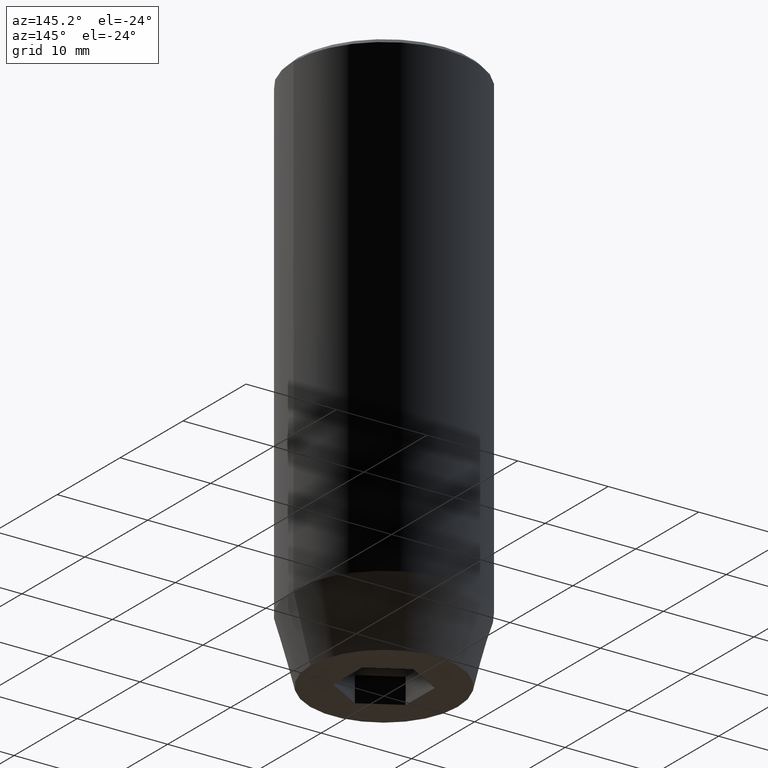
[diagram: clean part render]
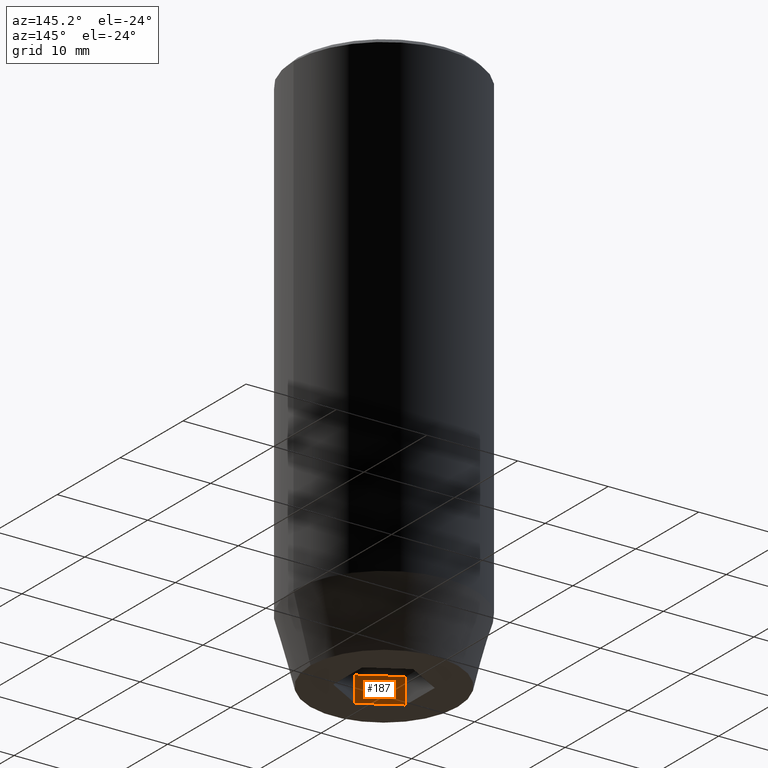
[diagram: same view with one face highlighted and labeled with its STEP entity id]
A machine part, auxiliary view. The second image highlights one B-rep face of the part: STEP entity #187.
In plain terms, the highlighted planar face has unit normal (-0.5, -0.866, 0).
Its self-contained STEP definition (entity closure, byte-faithful):
#1 = CARTESIAN_POINT ( 'NONE',  ( -2.000000000000000888, -3.464101615137754386, -57.20000000000000284 ) ) ;
#2 = CARTESIAN_POINT ( 'NONE',  ( -2.000000000000000888, -3.464101615137754386, -60.00000000000000000 ) ) ;
#14 = ORIENTED_EDGE ( 'NONE', *, *, #145, .T. ) ;
#23 = DIRECTION ( 'NONE',  ( 0.8660254037844384856, -0.5000000000000002220, 0.000000000000000000 ) ) ;
#32 = EDGE_CURVE ( 'NONE', #308, #71, #312, .T. ) ;
#56 = CARTESIAN_POINT ( 'NONE',  ( 4.336808689942017736E-16, -4.618802153517006737, -57.20000000000000284 ) ) ;
#71 = VERTEX_POINT ( 'NONE', #74 ) ;
#74 = CARTESIAN_POINT ( 'NONE',  ( -4.000000000000000000, -2.309401076758503368, -57.20000000000000284 ) ) ;
#78 = VERTEX_POINT ( 'NONE', #416 ) ;
#80 = VECTOR ( 'NONE', #234, 1000.000000000000000 ) ;
#90 = EDGE_LOOP ( 'NONE', ( #14, #126, #549, #178 ) ) ;
#96 = VECTOR ( 'NONE', #106, 1000.000000000000114 ) ;
#106 = DIRECTION ( 'NONE',  ( -0.8660254037844384856, 0.5000000000000002220, 0.000000000000000000 ) ) ;
#120 = CARTESIAN_POINT ( 'NONE',  ( -2.000000000000000888, -3.464101615137754386, -57.20000000000000284 ) ) ;
#126 = ORIENTED_EDGE ( 'NONE', *, *, #264, .F. ) ;
#141 = VECTOR ( 'NONE', #188, 1000.000000000000114 ) ;
#144 = AXIS2_PLACEMENT_3D ( 'NONE', #120, #419, #23 ) ;
#145 = EDGE_CURVE ( 'NONE', #78, #217, #540, .T. ) ;
#178 = ORIENTED_EDGE ( 'NONE', *, *, #332, .T. ) ;
#180 = DIRECTION ( 'NONE',  ( -0.000000000000000000, -0.000000000000000000, -1.000000000000000000 ) ) ;
#187 = ADVANCED_FACE ( 'NONE', ( #507 ), #512, .F. ) ;
#188 = DIRECTION ( 'NONE',  ( -0.8660254037844384856, 0.5000000000000002220, 0.000000000000000000 ) ) ;
#217 = VERTEX_POINT ( 'NONE', #508 ) ;
#234 = DIRECTION ( 'NONE',  ( -0.000000000000000000, -0.000000000000000000, -1.000000000000000000 ) ) ;
#264 = EDGE_CURVE ( 'NONE', #71, #217, #583, .T. ) ;
#272 = LINE ( 'NONE', #56, #80 ) ;
#292 = VECTOR ( 'NONE', #180, 1000.000000000000000 ) ;
#308 = VERTEX_POINT ( 'NONE', #415 ) ;
#312 = LINE ( 'NONE', #1, #96 ) ;
#332 = EDGE_CURVE ( 'NONE', #308, #78, #272, .T. ) ;
#394 = CARTESIAN_POINT ( 'NONE',  ( -4.000000000000000000, -2.309401076758503368, -57.20000000000000284 ) ) ;
#415 = CARTESIAN_POINT ( 'NONE',  ( 4.336808689942017736E-16, -4.618802153517006737, -57.20000000000000284 ) ) ;
#416 = CARTESIAN_POINT ( 'NONE',  ( 4.336808689942017736E-16, -4.618802153517006737, -60.00000000000000000 ) ) ;
#419 = DIRECTION ( 'NONE',  ( -0.5000000000000003331, -0.8660254037844385966, 0.000000000000000000 ) ) ;
#507 = FACE_OUTER_BOUND ( 'NONE', #90, .T. ) ;
#508 = CARTESIAN_POINT ( 'NONE',  ( -4.000000000000000000, -2.309401076758503368, -60.00000000000000000 ) ) ;
#512 = PLANE ( 'NONE',  #144 ) ;
#540 = LINE ( 'NONE', #2, #141 ) ;
#549 = ORIENTED_EDGE ( 'NONE', *, *, #32, .F. ) ;
#583 = LINE ( 'NONE', #394, #292 ) ;